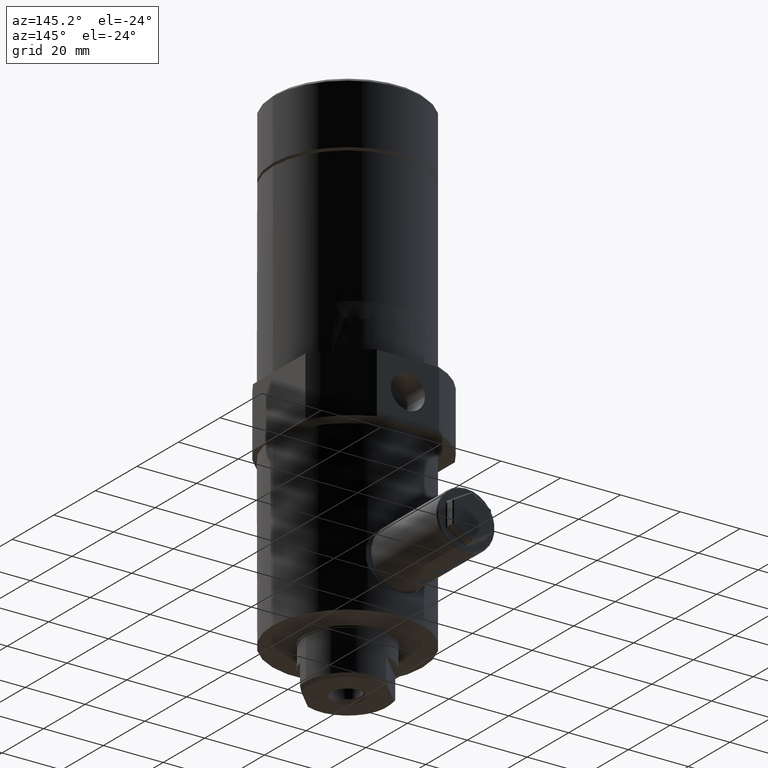
[diagram: clean part render]
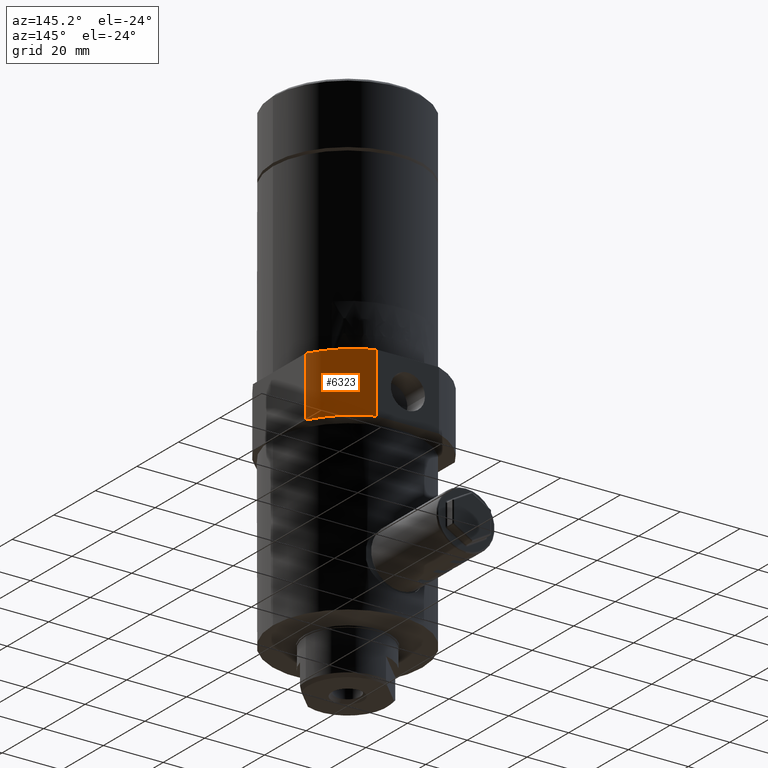
[diagram: same view with one face highlighted and labeled with its STEP entity id]
A machine part, auxiliary view. The second image highlights one B-rep face of the part: STEP entity #6323.
In plain terms, the highlighted cylindrical surface (partial cylindrical patch) has radius 28 mm, axis along (0, -0, -1).
Its self-contained STEP definition (entity closure, byte-faithful):
#229 = CARTESIAN_POINT ( 'NONE',  ( 10.39230484541330000, 29.00000000000000000, 5.524683141629100000 ) ) ;
#250 = EDGE_LOOP ( 'NONE', ( #5615, #649, #3972, #5854 ) ) ;
#335 = EDGE_CURVE ( 'NONE', #3188, #5906, #2221, .T. ) ;
#442 = DIRECTION ( 'NONE',  ( 2.574111338686239600E-017, -1.038109137218916000E-017, -1.000000000000000000 ) ) ;
#649 = ORIENTED_EDGE ( 'NONE', *, *, #335, .T. ) ;
#821 = AXIS2_PLACEMENT_3D ( 'NONE', #6229, #3147, #2576 ) ;
#827 = CIRCLE ( 'NONE', #821, 28.00000000000000000 ) ;
#1165 = DIRECTION ( 'NONE',  ( -1.000000000000000000, -1.548860246407863500E-017, -3.097720492815727000E-017 ) ) ;
#1587 = CYLINDRICAL_SURFACE ( 'NONE', #4458, 28.00000000000000000 ) ;
#1765 = LINE ( 'NONE', #229, #5774 ) ;
#1898 = CARTESIAN_POINT ( 'NONE',  ( 10.39230484541327800, 29.00000000000000000, 61.52468314162910400 ) ) ;
#2121 = VERTEX_POINT ( 'NONE', #3674 ) ;
#2220 = CARTESIAN_POINT ( 'NONE',  ( 25.00000000000000000, 15.60952021291850000, 81.52468314162909700 ) ) ;
#2221 = LINE ( 'NONE', #3026, #3996 ) ;
#2576 = DIRECTION ( 'NONE',  ( 1.000000000000000000, 1.548860246407863500E-017, 0.0000000000000000000 ) ) ;
#2765 = CARTESIAN_POINT ( 'NONE',  ( -1.472645623780860000E-015, 3.000000000000000000, 61.52468314162910400 ) ) ;
#3026 = CARTESIAN_POINT ( 'NONE',  ( 25.00000000000000000, 15.60952021291850000, 5.524683141629100000 ) ) ;
#3147 = DIRECTION ( 'NONE',  ( -2.574111338686239600E-017, 1.038109137218916000E-017, 1.000000000000000000 ) ) ;
#3188 = VERTEX_POINT ( 'NONE', #2220 ) ;
#3444 = EDGE_CURVE ( 'NONE', #4322, #5906, #6115, .T. ) ;
#3674 = CARTESIAN_POINT ( 'NONE',  ( 10.39230484541326000, 29.00000000000000000, 81.52468314162909700 ) ) ;
#3972 = ORIENTED_EDGE ( 'NONE', *, *, #3444, .F. ) ;
#3996 = VECTOR ( 'NONE', #442, 1000.000000000000000 ) ;
#4322 = VERTEX_POINT ( 'NONE', #1898 ) ;
#4415 = CARTESIAN_POINT ( 'NONE',  ( -3.114327411656749900E-017, 3.000000000000000000, 5.524683141629100000 ) ) ;
#4458 = AXIS2_PLACEMENT_3D ( 'NONE', #4415, #5290, #1165 ) ;
#4850 = DIRECTION ( 'NONE',  ( 2.574111338686239600E-017, -1.038109137218916000E-017, -1.000000000000000000 ) ) ;
#4883 = EDGE_CURVE ( 'NONE', #4322, #2121, #1765, .T. ) ;
#5075 = EDGE_CURVE ( 'NONE', #3188, #2121, #827, .T. ) ;
#5277 = AXIS2_PLACEMENT_3D ( 'NONE', #2765, #4850, #6453 ) ;
#5290 = DIRECTION ( 'NONE',  ( 2.574111338686239600E-017, -1.038109137218916000E-017, -1.000000000000000000 ) ) ;
#5615 = ORIENTED_EDGE ( 'NONE', *, *, #5075, .F. ) ;
#5689 = FACE_OUTER_BOUND ( 'NONE', #250, .T. ) ;
#5774 = VECTOR ( 'NONE', #5812, 1000.000000000000000 ) ;
#5812 = DIRECTION ( 'NONE',  ( -2.574111338686239600E-017, 1.038109137218916000E-017, 1.000000000000000000 ) ) ;
#5854 = ORIENTED_EDGE ( 'NONE', *, *, #4883, .T. ) ;
#5906 = VERTEX_POINT ( 'NONE', #6251 ) ;
#6115 = CIRCLE ( 'NONE', #5277, 28.00000000000000000 ) ;
#6229 = CARTESIAN_POINT ( 'NONE',  ( -1.987467891518109900E-015, 3.000000000000000000, 81.52468314162909700 ) ) ;
#6251 = CARTESIAN_POINT ( 'NONE',  ( 25.00000000000000000, 15.60952021291850000, 61.52468314162910400 ) ) ;
#6323 = ADVANCED_FACE ( 'NONE', ( #5689 ), #1587, .T. ) ;
#6453 = DIRECTION ( 'NONE',  ( -1.000000000000000000, -1.548860246407863500E-017, 0.0000000000000000000 ) ) ;